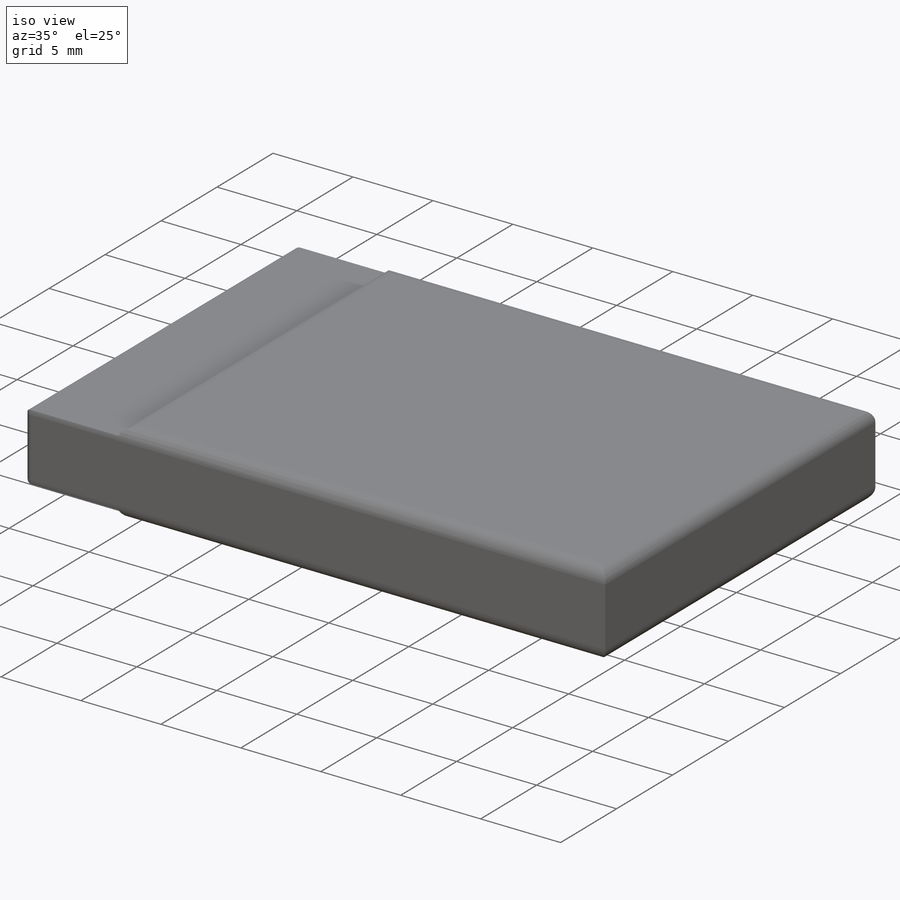
[diagram: iso view]
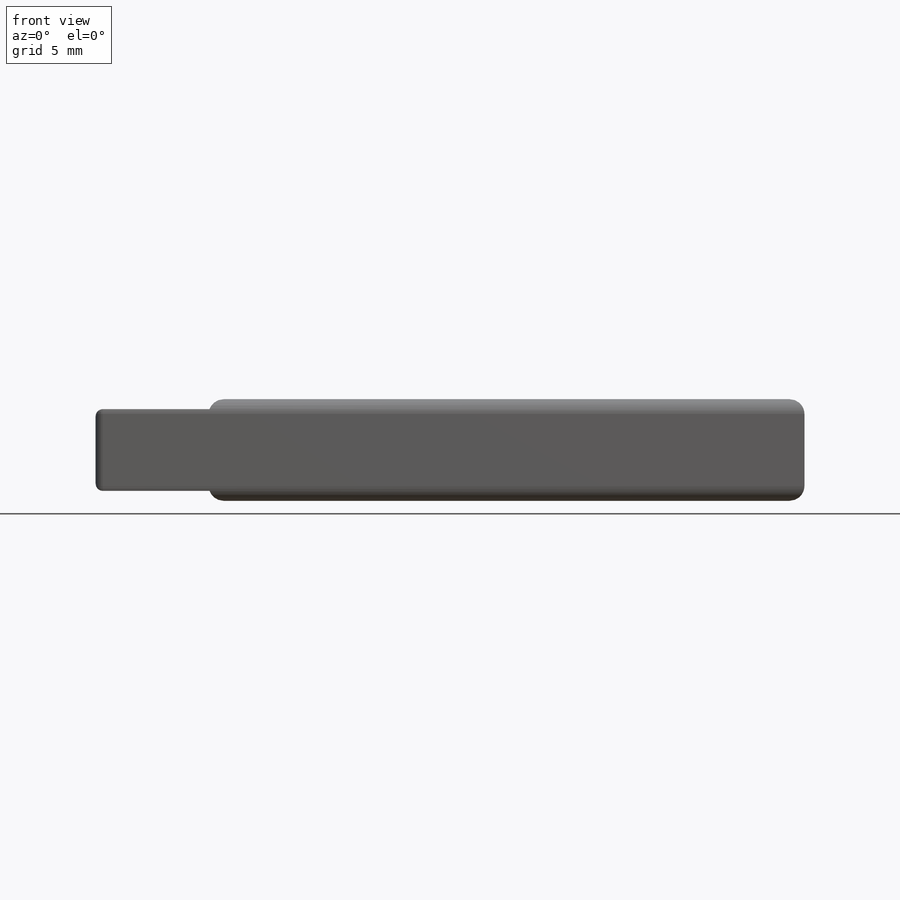
[diagram: front view]
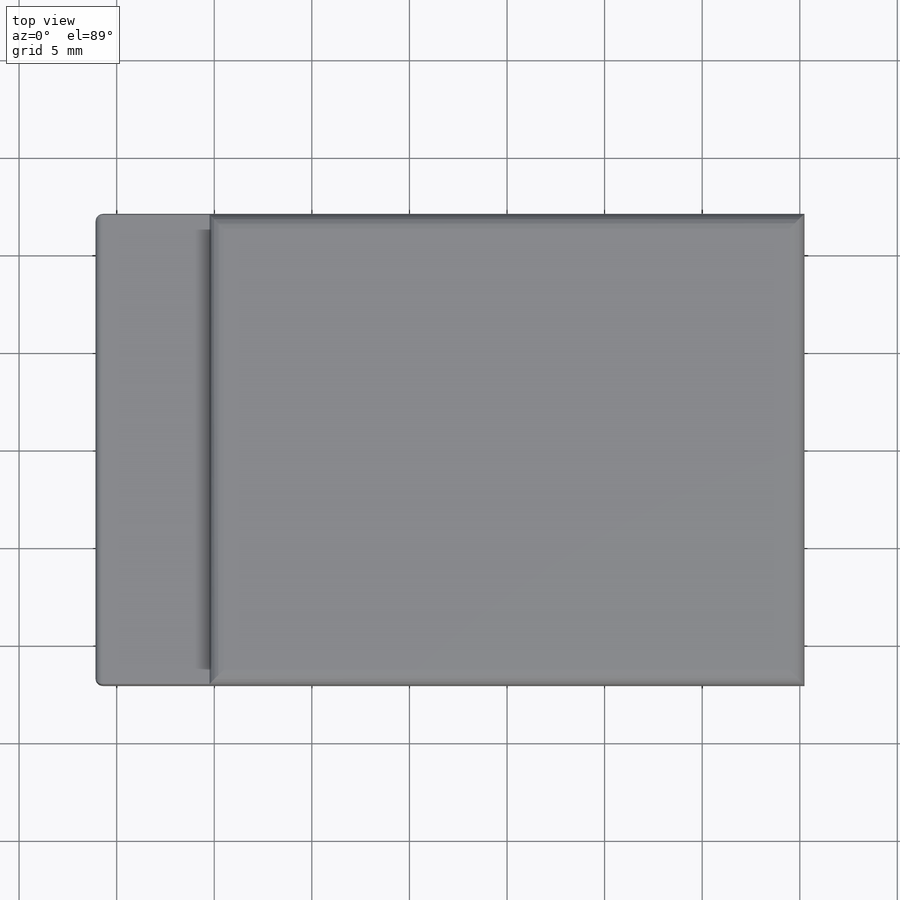
[diagram: top view]
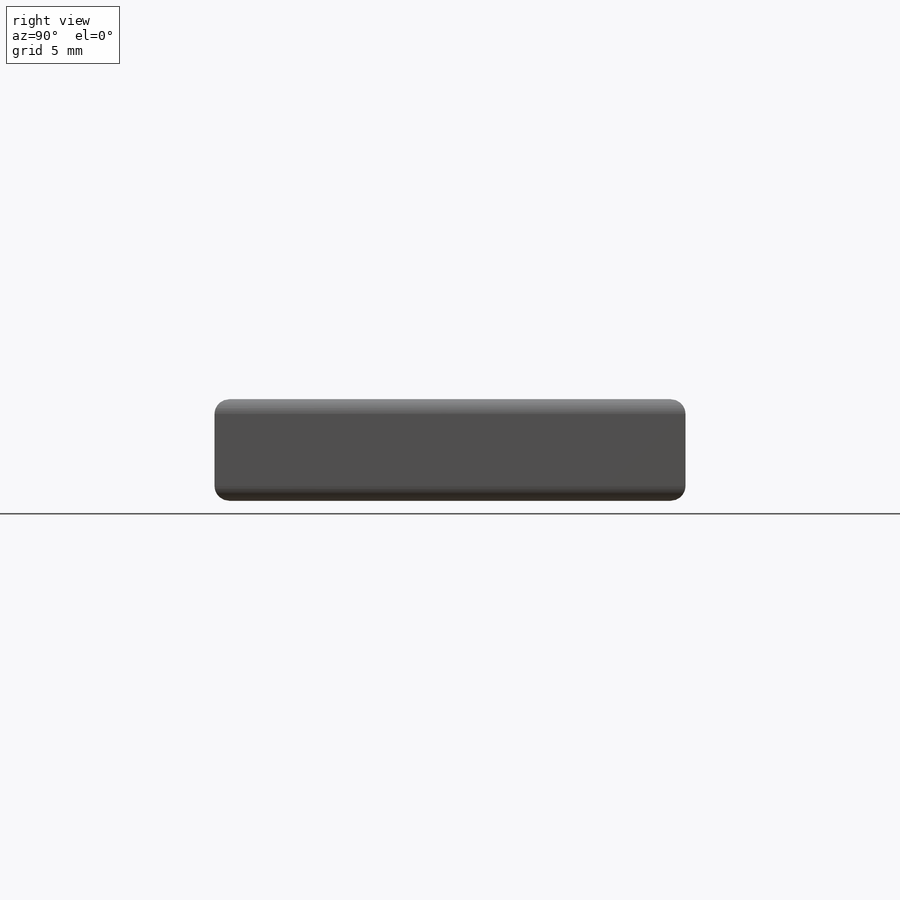
[diagram: right view]
SOLIDWORKS PART (.sldprt)
format: sldprt  version: not decoded by parser v0  size: 238,080 bytes
history: native  units: mm
features: sketch x2, extrude x2, fillet x2, material x1 (+11 scaffold rows collapsed)
feature tree (18):
  scaffold x11  (default folders/planes/origin — collapsed)
  material  "lipo_batt"
  sketch  "Sketch1"  dims[D1=30.48mm D2=24.13mm]
  extrude  "Boss-Extrude1"  Depth=5.207mm
  sketch  "Sketch2"  dims[D1=11.049mm D2=4.191mm]
  extrude  "Boss-Extrude2"  Depth=5.842mm
  fillet  "Fillet5"  Radius=0.762mm
  fillet  "Fillet4"  Radius=0.381mm
decode coverage: 6 of 6 modeling features carry decoded parameters
note: suppression state not decoded; provenance and decode notes live in map.json
